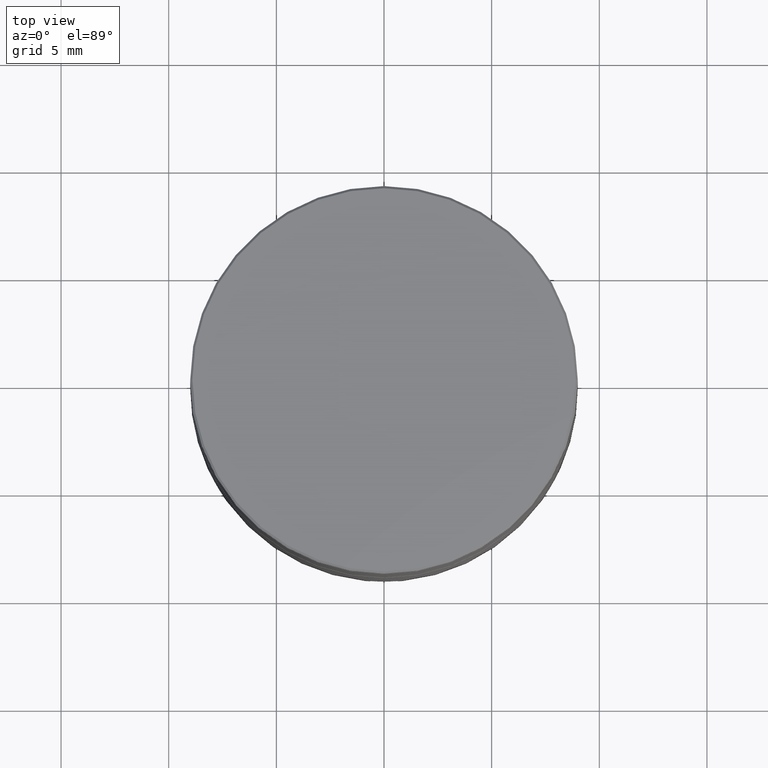
[diagram: clean part render]
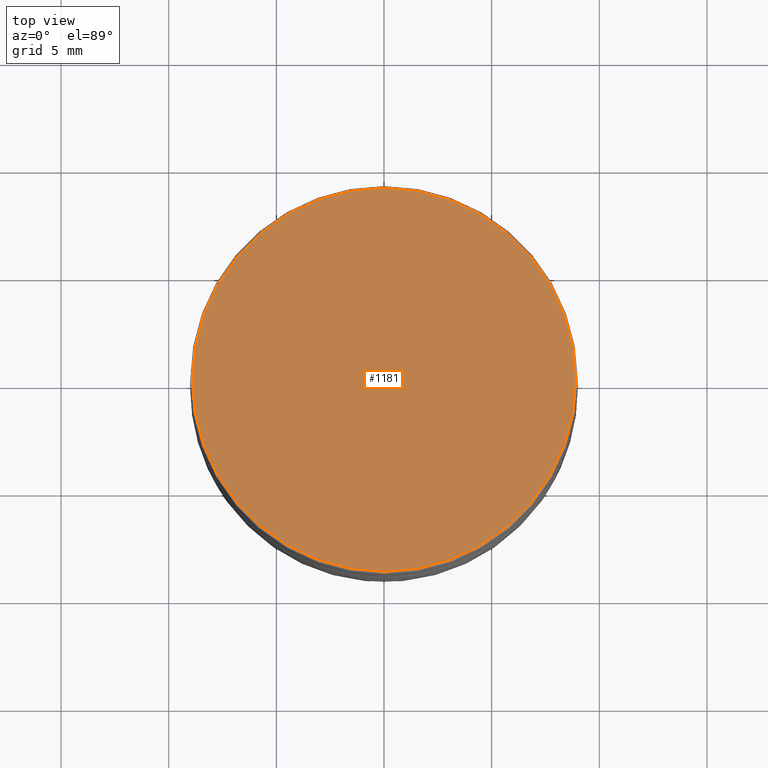
[diagram: same view with one face highlighted and labeled with its STEP entity id]
A machine part, top view. The second image highlights one B-rep face of the part: STEP entity #1181.
In plain terms, the highlighted planar face has unit normal (0, -0, 1).
Its self-contained STEP definition (entity closure, byte-faithful):
#93 = EDGE_LOOP ( 'NONE', ( #429, #1231 ) ) ;
#218 = CARTESIAN_POINT ( 'NONE',  ( 0.000000000000000000, 0.000000000000000000, 0.000000000000000000 ) ) ;
#226 = CARTESIAN_POINT ( 'NONE',  ( 8.900000000000009237, 1.096058885236881233E-15, 0.000000000000000000 ) ) ;
#339 = CARTESIAN_POINT ( 'NONE',  ( 0.000000000000000000, 0.000000000000000000, 0.000000000000000000 ) ) ;
#369 = AXIS2_PLACEMENT_3D ( 'NONE', #339, #469, #1212 ) ;
#429 = ORIENTED_EDGE ( 'NONE', *, *, #608, .T. ) ;
#469 = DIRECTION ( 'NONE',  ( -0.000000000000000000, -0.000000000000000000, 1.000000000000000000 ) ) ;
#562 = CIRCLE ( 'NONE', #369, 8.900000000000009237 ) ;
#608 = EDGE_CURVE ( 'NONE', #899, #786, #562, .T. ) ;
#630 = DIRECTION ( 'NONE',  ( 0.000000000000000000, -0.000000000000000000, 1.000000000000000000 ) ) ;
#637 = AXIS2_PLACEMENT_3D ( 'NONE', #1217, #1100, #1470 ) ;
#666 = EDGE_CURVE ( 'NONE', #786, #899, #716, .T. ) ;
#667 = CARTESIAN_POINT ( 'NONE',  ( -8.900000000000009237, 0.000000000000000000, 0.000000000000000000 ) ) ;
#716 = CIRCLE ( 'NONE', #637, 8.900000000000009237 ) ;
#721 = DIRECTION ( 'NONE',  ( 1.000000000000000000, 0.000000000000000000, 0.000000000000000000 ) ) ;
#786 = VERTEX_POINT ( 'NONE', #226 ) ;
#899 = VERTEX_POINT ( 'NONE', #667 ) ;
#1100 = DIRECTION ( 'NONE',  ( -0.000000000000000000, -0.000000000000000000, 1.000000000000000000 ) ) ;
#1181 = ADVANCED_FACE ( 'NONE', ( #1378 ), #1236, .T. ) ;
#1212 = DIRECTION ( 'NONE',  ( 1.000000000000000000, 0.000000000000000000, 0.000000000000000000 ) ) ;
#1217 = CARTESIAN_POINT ( 'NONE',  ( 0.000000000000000000, 0.000000000000000000, 0.000000000000000000 ) ) ;
#1231 = ORIENTED_EDGE ( 'NONE', *, *, #666, .T. ) ;
#1236 = PLANE ( 'NONE',  #1397 ) ;
#1378 = FACE_OUTER_BOUND ( 'NONE', #93, .T. ) ;
#1397 = AXIS2_PLACEMENT_3D ( 'NONE', #218, #630, #721 ) ;
#1470 = DIRECTION ( 'NONE',  ( 1.000000000000000000, 0.000000000000000000, 0.000000000000000000 ) ) ;